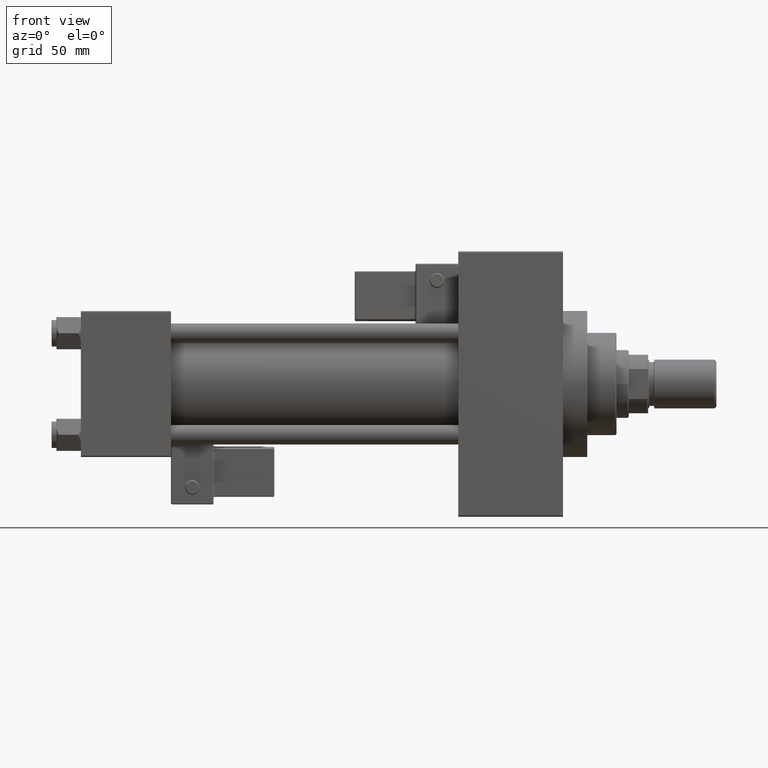
[diagram: clean part render]
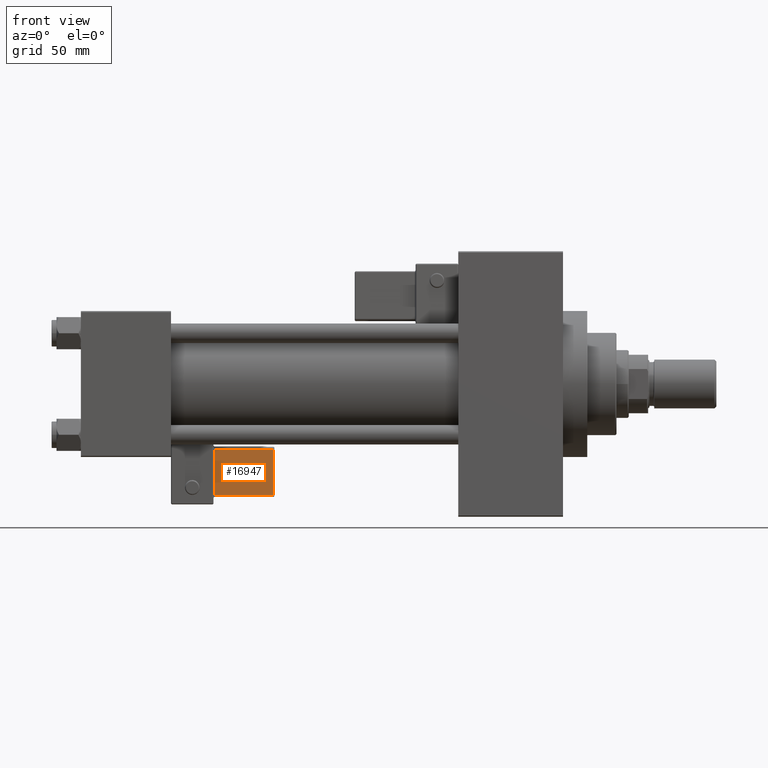
[diagram: same view with one face highlighted and labeled with its STEP entity id]
A machine part, front view. The second image highlights one B-rep face of the part: STEP entity #16947.
In plain terms, the highlighted planar face has unit normal (0, 0.9994, 0.0353).
Its self-contained STEP definition (entity closure, byte-faithful):
#54 = FACE_OUTER_BOUND ( 'NONE', #30669, .T. ) ;
#3609 = DIRECTION ( 'NONE',  ( 0.000000000000000000, -0.000000000000000000, 1.000000000000000000 ) ) ;
#5924 = VERTEX_POINT ( 'NONE', #6539 ) ;
#6504 = CARTESIAN_POINT ( 'NONE',  ( 9.250000000000005329, -32.24999999999999289, 2.500000000000004885 ) ) ;
#6539 = CARTESIAN_POINT ( 'NONE',  ( 33.24999999999999289, -32.24999999999999289, 2.500000000000008438 ) ) ;
#7147 = PLANE ( 'NONE',  #31962 ) ;
#7177 = VECTOR ( 'NONE', #27127, 1000.000000000000000 ) ;
#8845 = CARTESIAN_POINT ( 'NONE',  ( 33.75000000000000000, -32.24999999999999289, 2.500000000000009326 ) ) ;
#10381 = VERTEX_POINT ( 'NONE', #27869 ) ;
#11375 = VERTEX_POINT ( 'NONE', #40446 ) ;
#11774 = LINE ( 'NONE', #26884, #7177 ) ;
#12435 = DIRECTION ( 'NONE',  ( -1.000000000000000000, 0.000000000000000000, -1.334402673828313339E-16 ) ) ;
#15342 = VECTOR ( 'NONE', #36051, 1000.000000000000000 ) ;
#16947 = ADVANCED_FACE ( 'NONE', ( #54 ), #7147, .F. ) ;
#18471 = CARTESIAN_POINT ( 'NONE',  ( 33.75000000000000000, -32.24999999999999289, 22.00000000000000355 ) ) ;
#19325 = ORIENTED_EDGE ( 'NONE', *, *, #31185, .T. ) ;
#19970 = VECTOR ( 'NONE', #20903, 1000.000000000000000 ) ;
#20271 = EDGE_CURVE ( 'NONE', #5924, #11375, #48443, .T. ) ;
#20903 = DIRECTION ( 'NONE',  ( -1.734723475976807587E-16, -0.000000000000000000, 1.000000000000000000 ) ) ;
#23223 = ORIENTED_EDGE ( 'NONE', *, *, #27548, .T. ) ;
#24123 = EDGE_CURVE ( 'NONE', #10381, #30675, #11774, .T. ) ;
#25179 = CARTESIAN_POINT ( 'NONE',  ( 33.24999999999999289, -32.24999999999999289, 22.00000000000000355 ) ) ;
#25564 = ORIENTED_EDGE ( 'NONE', *, *, #20271, .T. ) ;
#26710 = ORIENTED_EDGE ( 'NONE', *, *, #24123, .T. ) ;
#26884 = CARTESIAN_POINT ( 'NONE',  ( 9.250000000000005329, -32.24999999999999289, 2.000000000000005329 ) ) ;
#27127 = DIRECTION ( 'NONE',  ( 1.334402673828313339E-16, 0.000000000000000000, -1.000000000000000000 ) ) ;
#27514 = VECTOR ( 'NONE', #12435, 1000.000000000000000 ) ;
#27548 = EDGE_CURVE ( 'NONE', #30675, #5924, #42874, .T. ) ;
#27869 = CARTESIAN_POINT ( 'NONE',  ( 9.250000000000003553, -32.24999999999999289, 21.50000000000000000 ) ) ;
#30669 = EDGE_LOOP ( 'NONE', ( #26710, #23223, #25564, #19325 ) ) ;
#30675 = VERTEX_POINT ( 'NONE', #6504 ) ;
#31185 = EDGE_CURVE ( 'NONE', #11375, #10381, #40157, .T. ) ;
#31962 = AXIS2_PLACEMENT_3D ( 'NONE', #18471, #33855, #3609 ) ;
#33855 = DIRECTION ( 'NONE',  ( -0.000000000000000000, 1.000000000000000000, 0.000000000000000000 ) ) ;
#36051 = DIRECTION ( 'NONE',  ( 1.000000000000000000, -0.000000000000000000, 1.334402673828313339E-16 ) ) ;
#36367 = CARTESIAN_POINT ( 'NONE',  ( 33.75000000000000000, -32.24999999999999289, 21.50000000000000000 ) ) ;
#40157 = LINE ( 'NONE', #36367, #27514 ) ;
#40446 = CARTESIAN_POINT ( 'NONE',  ( 33.24999999999999289, -32.24999999999999289, 21.50000000000000000 ) ) ;
#42874 = LINE ( 'NONE', #8845, #15342 ) ;
#48443 = LINE ( 'NONE', #25179, #19970 ) ;